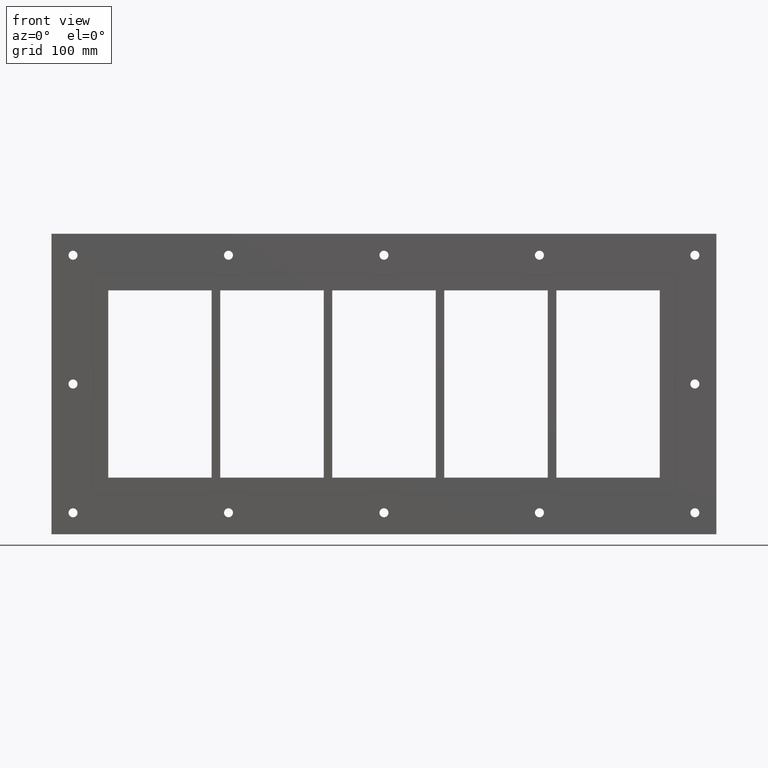
[diagram: clean part render]
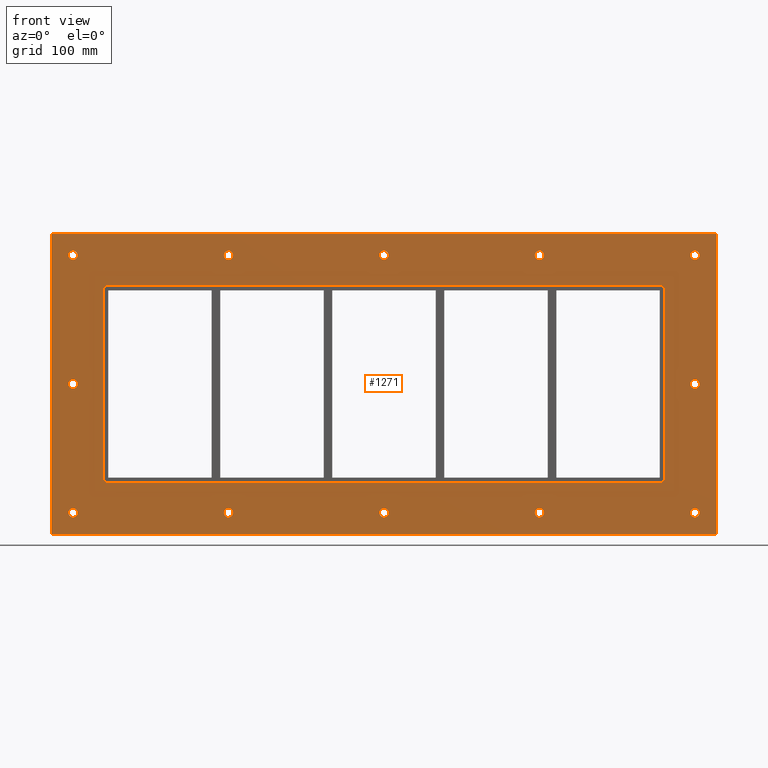
[diagram: same view with one face highlighted and labeled with its STEP entity id]
A machine part, front view. The second image highlights one B-rep face of the part: STEP entity #1271.
In plain terms, the highlighted planar face has unit normal (0, 1, 0).
Its self-contained STEP definition (entity closure, byte-faithful):
#84=CARTESIAN_POINT('',(-357.00000000000011,0.0,-150.0));
#85=VERTEX_POINT('',#84);
#86=CARTESIAN_POINT('',(-362.25000000000011,0.0,-150.0));
#87=DIRECTION('',(0.0,1.0,0.0));
#88=DIRECTION('',(1.0,0.0,0.0));
#89=AXIS2_PLACEMENT_3D('',#86,#87,#88);
#90=CIRCLE('',#89,5.25);
#91=EDGE_CURVE('',#85,#85,#90,.T.);
#112=CARTESIAN_POINT('',(367.39999999999986,0.0,0.0));
#113=VERTEX_POINT('',#112);
#114=CARTESIAN_POINT('',(362.14999999999986,0.0,0.0));
#115=DIRECTION('',(0.0,1.0,0.0));
#116=DIRECTION('',(1.0,0.0,0.0));
#117=AXIS2_PLACEMENT_3D('',#114,#115,#116);
#118=CIRCLE('',#117,5.25);
#119=EDGE_CURVE('',#113,#113,#118,.T.);
#140=CARTESIAN_POINT('',(-357.00000000000011,0.0,0.0));
#141=VERTEX_POINT('',#140);
#142=CARTESIAN_POINT('',(-362.25000000000011,0.0,0.0));
#143=DIRECTION('',(0.0,1.0,0.0));
#144=DIRECTION('',(1.0,0.0,0.0));
#145=AXIS2_PLACEMENT_3D('',#142,#143,#144);
#146=CIRCLE('',#145,5.25);
#147=EDGE_CURVE('',#141,#141,#146,.T.);
#168=CARTESIAN_POINT('',(-175.90000000000009,0.0,150.0));
#169=VERTEX_POINT('',#168);
#170=CARTESIAN_POINT('',(-181.15000000000009,0.0,150.0));
#171=DIRECTION('',(0.0,1.0,0.0));
#172=DIRECTION('',(1.0,0.0,0.0));
#173=AXIS2_PLACEMENT_3D('',#170,#171,#172);
#174=CIRCLE('',#173,5.25);
#175=EDGE_CURVE('',#169,#169,#174,.T.);
#196=CARTESIAN_POINT('',(-175.90000000000009,0.0,-150.0));
#197=VERTEX_POINT('',#196);
#198=CARTESIAN_POINT('',(-181.15000000000009,0.0,-150.0));
#199=DIRECTION('',(0.0,1.0,0.0));
#200=DIRECTION('',(1.0,0.0,0.0));
#201=AXIS2_PLACEMENT_3D('',#198,#199,#200);
#202=CIRCLE('',#201,5.25);
#203=EDGE_CURVE('',#197,#197,#202,.T.);
#224=CARTESIAN_POINT('',(5.199999999999889,0.0,150.0));
#225=VERTEX_POINT('',#224);
#226=CARTESIAN_POINT('',(-0.050000000000097,0.0,150.0));
#227=DIRECTION('',(0.0,1.0,0.0));
#228=DIRECTION('',(1.0,0.0,0.0));
#229=AXIS2_PLACEMENT_3D('',#226,#227,#228);
#230=CIRCLE('',#229,5.25);
#231=EDGE_CURVE('',#225,#225,#230,.T.);
#252=CARTESIAN_POINT('',(5.199999999999889,0.0,-150.0));
#253=VERTEX_POINT('',#252);
#254=CARTESIAN_POINT('',(-0.050000000000097,0.0,-150.0));
#255=DIRECTION('',(0.0,1.0,0.0));
#256=DIRECTION('',(1.0,0.0,0.0));
#257=AXIS2_PLACEMENT_3D('',#254,#255,#256);
#258=CIRCLE('',#257,5.25);
#259=EDGE_CURVE('',#253,#253,#258,.T.);
#280=CARTESIAN_POINT('',(186.2999999999999,0.0,150.0));
#281=VERTEX_POINT('',#280);
#282=CARTESIAN_POINT('',(181.0499999999999,0.0,150.0));
#283=DIRECTION('',(0.0,1.0,0.0));
#284=DIRECTION('',(1.0,0.0,0.0));
#285=AXIS2_PLACEMENT_3D('',#282,#283,#284);
#286=CIRCLE('',#285,5.25);
#287=EDGE_CURVE('',#281,#281,#286,.T.);
#308=CARTESIAN_POINT('',(186.2999999999999,0.0,-150.0));
#309=VERTEX_POINT('',#308);
#310=CARTESIAN_POINT('',(181.0499999999999,0.0,-150.0));
#311=DIRECTION('',(0.0,1.0,0.0));
#312=DIRECTION('',(1.0,0.0,0.0));
#313=AXIS2_PLACEMENT_3D('',#310,#311,#312);
#314=CIRCLE('',#313,5.25);
#315=EDGE_CURVE('',#309,#309,#314,.T.);
#336=CARTESIAN_POINT('',(367.39999999999986,0.0,-150.0));
#337=VERTEX_POINT('',#336);
#338=CARTESIAN_POINT('',(362.14999999999986,0.0,-150.0));
#339=DIRECTION('',(0.0,1.0,0.0));
#340=DIRECTION('',(1.0,0.0,0.0));
#341=AXIS2_PLACEMENT_3D('',#338,#339,#340);
#342=CIRCLE('',#341,5.25);
#343=EDGE_CURVE('',#337,#337,#342,.T.);
#364=CARTESIAN_POINT('',(-357.00000000000011,0.0,150.0));
#365=VERTEX_POINT('',#364);
#366=CARTESIAN_POINT('',(-362.25000000000011,0.0,150.0));
#367=DIRECTION('',(0.0,1.0,0.0));
#368=DIRECTION('',(1.0,0.0,0.0));
#369=AXIS2_PLACEMENT_3D('',#366,#367,#368);
#370=CIRCLE('',#369,5.25);
#371=EDGE_CURVE('',#365,#365,#370,.T.);
#392=CARTESIAN_POINT('',(367.39999999999986,0.0,150.0));
#393=VERTEX_POINT('',#392);
#394=CARTESIAN_POINT('',(362.14999999999986,0.0,150.0));
#395=DIRECTION('',(0.0,1.0,0.0));
#396=DIRECTION('',(1.0,0.0,0.0));
#397=AXIS2_PLACEMENT_3D('',#394,#395,#396);
#398=CIRCLE('',#397,5.25);
#399=EDGE_CURVE('',#393,#393,#398,.T.);
#1126=CARTESIAN_POINT('',(3.791246E-014,0.0,-1.516499E-014));
#1127=DIRECTION('',(0.0,1.0,0.0));
#1128=DIRECTION('',(0.0,0.0,1.0));
#1129=AXIS2_PLACEMENT_3D('',#1126,#1127,#1128);
#1130=PLANE('',#1129);
#1131=CARTESIAN_POINT('',(-387.24999999999994,0.0,174.99999999999997));
#1132=VERTEX_POINT('',#1131);
#1133=CARTESIAN_POINT('',(387.25,0.0,174.99999999999997));
#1134=VERTEX_POINT('',#1133);
#1135=CARTESIAN_POINT('',(-387.24999999999994,0.0,174.99999999999997));
#1136=DIRECTION('',(1.0,0.0,0.0));
#1137=VECTOR('',#1136,774.49999999999989);
#1138=LINE('',#1135,#1137);
#1139=EDGE_CURVE('',#1132,#1134,#1138,.T.);
#1140=ORIENTED_EDGE('',*,*,#1139,.F.);
#1141=CARTESIAN_POINT('',(-387.24999999999994,0.0,-175.0));
#1142=VERTEX_POINT('',#1141);
#1143=CARTESIAN_POINT('',(-387.24999999999994,0.0,-175.0));
#1144=DIRECTION('',(0.0,0.0,1.0));
#1145=VECTOR('',#1144,350.0);
#1146=LINE('',#1143,#1145);
#1147=EDGE_CURVE('',#1142,#1132,#1146,.T.);
#1148=ORIENTED_EDGE('',*,*,#1147,.F.);
#1149=CARTESIAN_POINT('',(387.25,0.0,-175.0));
#1150=VERTEX_POINT('',#1149);
#1151=CARTESIAN_POINT('',(387.25,0.0,-175.0));
#1152=DIRECTION('',(-1.0,0.0,0.0));
#1153=VECTOR('',#1152,774.49999999999989);
#1154=LINE('',#1151,#1153);
#1155=EDGE_CURVE('',#1150,#1142,#1154,.T.);
#1156=ORIENTED_EDGE('',*,*,#1155,.F.);
#1157=CARTESIAN_POINT('',(387.25,0.0,174.99999999999997));
#1158=DIRECTION('',(0.0,0.0,-1.0));
#1159=VECTOR('',#1158,350.0);
#1160=LINE('',#1157,#1159);
#1161=EDGE_CURVE('',#1134,#1150,#1160,.T.);
#1162=ORIENTED_EDGE('',*,*,#1161,.F.);
#1163=EDGE_LOOP('',(#1140,#1148,#1156,#1162));
#1164=FACE_OUTER_BOUND('',#1163,.T.);
#1165=ORIENTED_EDGE('',*,*,#91,.T.);
#1166=EDGE_LOOP('',(#1165));
#1167=FACE_BOUND('',#1166,.T.);
#1168=ORIENTED_EDGE('',*,*,#119,.T.);
#1169=EDGE_LOOP('',(#1168));
#1170=FACE_BOUND('',#1169,.T.);
#1171=ORIENTED_EDGE('',*,*,#147,.T.);
#1172=EDGE_LOOP('',(#1171));
#1173=FACE_BOUND('',#1172,.T.);
#1174=ORIENTED_EDGE('',*,*,#175,.T.);
#1175=EDGE_LOOP('',(#1174));
#1176=FACE_BOUND('',#1175,.T.);
#1177=ORIENTED_EDGE('',*,*,#203,.T.);
#1178=EDGE_LOOP('',(#1177));
#1179=FACE_BOUND('',#1178,.T.);
#1180=ORIENTED_EDGE('',*,*,#231,.T.);
#1181=EDGE_LOOP('',(#1180));
#1182=FACE_BOUND('',#1181,.T.);
#1183=ORIENTED_EDGE('',*,*,#259,.T.);
#1184=EDGE_LOOP('',(#1183));
#1185=FACE_BOUND('',#1184,.T.);
#1186=ORIENTED_EDGE('',*,*,#287,.T.);
#1187=EDGE_LOOP('',(#1186));
#1188=FACE_BOUND('',#1187,.T.);
#1189=ORIENTED_EDGE('',*,*,#315,.T.);
#1190=EDGE_LOOP('',(#1189));
#1191=FACE_BOUND('',#1190,.T.);
#1192=ORIENTED_EDGE('',*,*,#343,.T.);
#1193=EDGE_LOOP('',(#1192));
#1194=FACE_BOUND('',#1193,.T.);
#1195=ORIENTED_EDGE('',*,*,#371,.T.);
#1196=EDGE_LOOP('',(#1195));
#1197=FACE_BOUND('',#1196,.T.);
#1198=ORIENTED_EDGE('',*,*,#399,.T.);
#1199=EDGE_LOOP('',(#1198));
#1200=FACE_BOUND('',#1199,.T.);
#1201=CARTESIAN_POINT('',(-327.24999999999994,0.0,-108.99999999999999));
#1202=VERTEX_POINT('',#1201);
#1203=CARTESIAN_POINT('',(-321.25,0.0,-115.0));
#1204=VERTEX_POINT('',#1203);
#1205=CARTESIAN_POINT('',(-321.25,0.0,-108.99999999999999));
#1206=DIRECTION('',(0.0,-1.0,0.0));
#1207=DIRECTION('',(-0.707106781186543,0.0,-0.707106781186552));
#1208=AXIS2_PLACEMENT_3D('',#1205,#1206,#1207);
#1209=CIRCLE('',#1208,6.000000000000001);
#1210=EDGE_CURVE('',#1202,#1204,#1209,.T.);
#1211=ORIENTED_EDGE('',*,*,#1210,.F.);
#1212=CARTESIAN_POINT('',(-327.24999999999994,0.0,108.99999999999999));
#1213=VERTEX_POINT('',#1212);
#1214=CARTESIAN_POINT('',(-327.24999999999994,0.0,109.0));
#1215=DIRECTION('',(0.0,0.0,-1.0));
#1216=VECTOR('',#1215,218.0);
#1217=LINE('',#1214,#1216);
#1218=EDGE_CURVE('',#1213,#1202,#1217,.T.);
#1219=ORIENTED_EDGE('',*,*,#1218,.F.);
#1220=CARTESIAN_POINT('',(-321.25,0.0,115.0));
#1221=VERTEX_POINT('',#1220);
#1222=CARTESIAN_POINT('',(-321.25,0.0,108.99999999999999));
#1223=DIRECTION('',(0.0,-1.0,0.0));
#1224=DIRECTION('',(-0.707106781186543,0.0,0.707106781186552));
#1225=AXIS2_PLACEMENT_3D('',#1222,#1223,#1224);
#1226=CIRCLE('',#1225,6.000000000000001);
#1227=EDGE_CURVE('',#1221,#1213,#1226,.T.);
#1228=ORIENTED_EDGE('',*,*,#1227,.F.);
#1229=CARTESIAN_POINT('',(321.25,0.0,115.0));
#1230=VERTEX_POINT('',#1229);
#1231=CARTESIAN_POINT('',(321.25000000000006,0.0,115.0));
#1232=DIRECTION('',(-1.0,0.0,0.0));
#1233=VECTOR('',#1232,642.5);
#1234=LINE('',#1231,#1233);
#1235=EDGE_CURVE('',#1230,#1221,#1234,.T.);
#1236=ORIENTED_EDGE('',*,*,#1235,.F.);
#1237=CARTESIAN_POINT('',(327.24999999999994,0.0,109.0));
#1238=VERTEX_POINT('',#1237);
#1239=CARTESIAN_POINT('',(321.25,0.0,109.0));
#1240=DIRECTION('',(0.0,-1.0,0.0));
#1241=DIRECTION('',(0.707106781186545,0.0,0.70710678118655));
#1242=AXIS2_PLACEMENT_3D('',#1239,#1240,#1241);
#1243=CIRCLE('',#1242,6.000000000000001);
#1244=EDGE_CURVE('',#1238,#1230,#1243,.T.);
#1245=ORIENTED_EDGE('',*,*,#1244,.F.);
#1246=CARTESIAN_POINT('',(327.24999999999994,0.0,-108.99999999999999));
#1247=VERTEX_POINT('',#1246);
#1248=CARTESIAN_POINT('',(327.24999999999994,0.0,-109.0));
#1249=DIRECTION('',(0.0,0.0,1.0));
#1250=VECTOR('',#1249,218.0);
#1251=LINE('',#1248,#1250);
#1252=EDGE_CURVE('',#1247,#1238,#1251,.T.);
#1253=ORIENTED_EDGE('',*,*,#1252,.F.);
#1254=CARTESIAN_POINT('',(321.25,0.0,-115.0));
#1255=VERTEX_POINT('',#1254);
#1256=CARTESIAN_POINT('',(321.25,0.0,-108.99999999999999));
#1257=DIRECTION('',(0.0,-1.0,0.0));
#1258=DIRECTION('',(0.707106781186543,0.0,-0.707106781186552));
#1259=AXIS2_PLACEMENT_3D('',#1256,#1257,#1258);
#1260=CIRCLE('',#1259,6.000000000000001);
#1261=EDGE_CURVE('',#1255,#1247,#1260,.T.);
#1262=ORIENTED_EDGE('',*,*,#1261,.F.);
#1263=CARTESIAN_POINT('',(-321.25,0.0,-115.0));
#1264=DIRECTION('',(1.0,0.0,0.0));
#1265=VECTOR('',#1264,642.5);
#1266=LINE('',#1263,#1265);
#1267=EDGE_CURVE('',#1204,#1255,#1266,.T.);
#1268=ORIENTED_EDGE('',*,*,#1267,.F.);
#1269=EDGE_LOOP('',(#1211,#1219,#1228,#1236,#1245,#1253,#1262,#1268));
#1270=FACE_BOUND('',#1269,.T.);
#1271=ADVANCED_FACE('',(#1164,#1167,#1170,#1173,#1176,#1179,#1182,#1185,#1188,#1191,#1194,#1197,#1200,#1270),#1130,.F.);